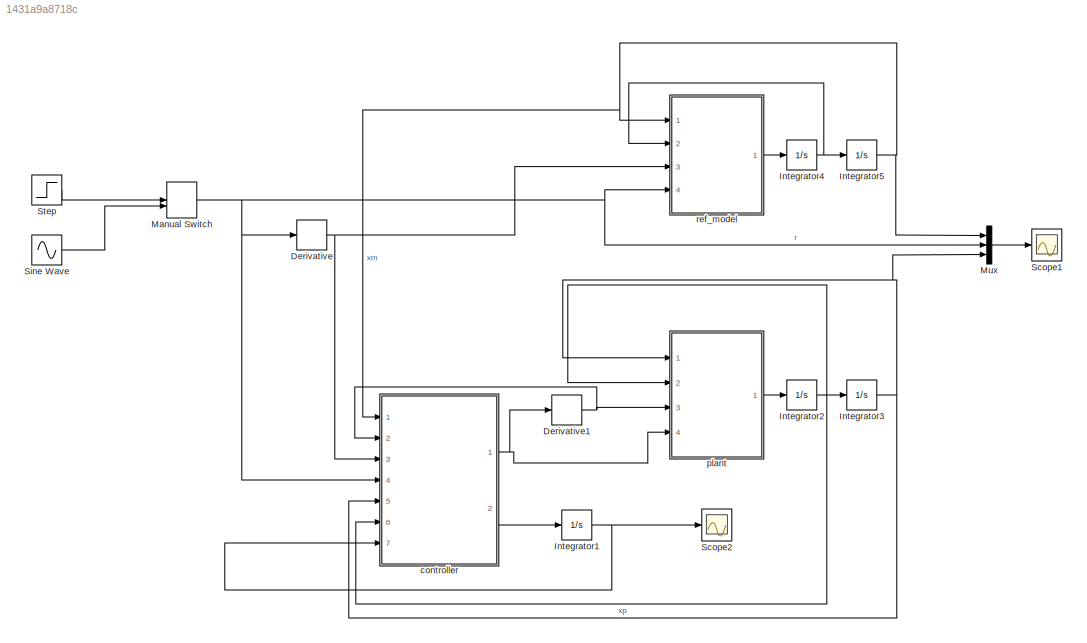
MODEL slx_1431a9a8718c
KIND model
BLOCK [Derivative] Derivative
BLOCK [Derivative] Derivative1
BLOCK [Integrator] Integrator1
  InitialCondition = theta0
  Ports = [1, 1]
BLOCK [Integrator] Integrator2
  InitialCondition = dxp0
  Ports = [1, 1]
BLOCK [Integrator] Integrator3
  InitialCondition = xp0
  Ports = [1, 1]
BLOCK [Integrator] Integrator4
  InitialCondition = dxm0
  Ports = [1, 1]
BLOCK [Integrator] Integrator5
  InitialCondition = xm0
  Ports = [1, 1]
BLOCK [ManualSwitch] Manual Switch
  CurrentSetting = 0
BLOCK [Mux] Mux
  DisplayOption = bar
  Inputs = 3
  Ports = [3, 1]
BLOCK [Scope] Scope1
  Floating = off
  LegendLocations = 0.81782     0.65574     0.11562     0.18907
  LimitDataPoints = off
  NumInputPorts = 1
  Ports = [1]
  SaveName = ScopeData1
  ShowLegends = on
  YMax = 2.5
  YMin = 0
  ZoomMode = yonly
BLOCK [Scope] Scope2
  Floating = off
  LegendLocations = 0.092593     0.22514     0.21471     0.30492
  LimitDataPoints = off
  NumInputPorts = 1
  Ports = [1]
  SaveName = ScopeData2
  ShowLegends = on
  YMax = 0.25
  YMin = -0.15
BLOCK [Sin] Sine Wave
  Amplitude = 4
  Frequency = 2*pi/10
  Ports = [0, 1]
  SampleTime = 0
BLOCK [Step] Step
  SampleTime = 0
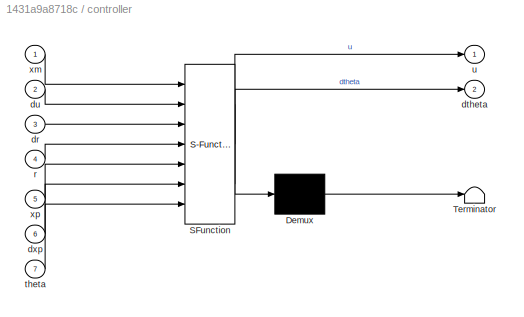
BLOCK [SubSystem] controller
  ErrorFcn = Stateflow.Translate.translate
  PermitHierarchicalResolution = ParametersOnly
  Ports = [7, 2]
  RequestExecContextInheritance = off
  SFBlockType = MATLAB Function
  TreatAsAtomicUnit = on
BLOCK [Demux] controller/ Demux 
  Outputs = 1
  Ports = [1, 1]
BLOCK [S-Function] controller/ SFunction 
  EnableBusSupport = on
  FunctionName = sf_sfun
  Parameters = gamma
  PortCounts = [7 3]
  Ports = [7, 3]
  Tag = Stateflow S-Function simu_2 2
BLOCK [Terminator] controller/ Terminator 
BLOCK [Inport] controller/dr
  IconDisplay = Port number
  Port = 3
BLOCK [Outport] controller/dtheta
  IconDisplay = Port number
  Port = 2
BLOCK [Inport] controller/du
  IconDisplay = Port number
  Port = 2
BLOCK [Inport] controller/dxp
  IconDisplay = Port number
  Port = 6
BLOCK [Inport] controller/r
  IconDisplay = Port number
  Port = 4
BLOCK [Inport] controller/theta
  IconDisplay = Port number
  Port = 7
BLOCK [Outport] controller/u
  IconDisplay = Port number
BLOCK [Inport] controller/xm
  IconDisplay = Port number
BLOCK [Inport] controller/xp
  IconDisplay = Port number
  Port = 5
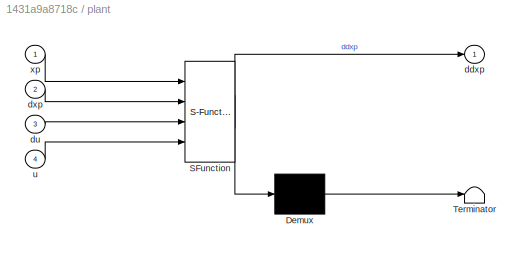
BLOCK [SubSystem] plant
  ErrorFcn = Stateflow.Translate.translate
  PermitHierarchicalResolution = ParametersOnly
  Ports = [4, 1]
  RequestExecContextInheritance = off
  SFBlockType = MATLAB Function
  TreatAsAtomicUnit = on
BLOCK [Demux] plant/ Demux 
  Outputs = 1
  Ports = [1, 1]
BLOCK [S-Function] plant/ SFunction 
  EnableBusSupport = on
  FunctionName = sf_sfun
  Parameters = ap,cp,kp
  PortCounts = [4 2]
  Ports = [4, 2]
  Tag = Stateflow S-Function simu_2 3
BLOCK [Terminator] plant/ Terminator 
BLOCK [Outport] plant/ddxp
  IconDisplay = Port number
BLOCK [Inport] plant/du
  IconDisplay = Port number
  Port = 3
BLOCK [Inport] plant/dxp
  IconDisplay = Port number
  Port = 2
BLOCK [Inport] plant/u
  IconDisplay = Port number
  Port = 4
BLOCK [Inport] plant/xp
  IconDisplay = Port number
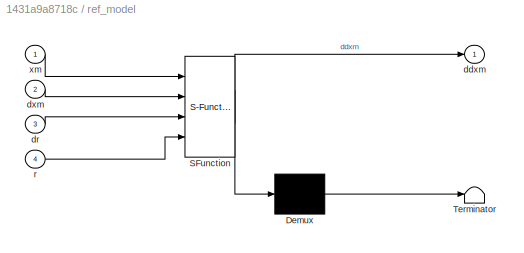
BLOCK [SubSystem] ref_model
  ErrorFcn = Stateflow.Translate.translate
  PermitHierarchicalResolution = ParametersOnly
  Ports = [4, 1]
  RequestExecContextInheritance = off
  SFBlockType = MATLAB Function
  TreatAsAtomicUnit = on
BLOCK [Demux] ref_model/ Demux 
  Outputs = 1
  Ports = [1, 1]
BLOCK [S-Function] ref_model/ SFunction 
  EnableBusSupport = on
  FunctionName = sf_sfun
  Parameters = am,cm,km
  PortCounts = [4 2]
  Ports = [4, 2]
  Tag = Stateflow S-Function simu_2 1
BLOCK [Terminator] ref_model/ Terminator 
BLOCK [Outport] ref_model/ddxm
  IconDisplay = Port number
BLOCK [Inport] ref_model/dr
  IconDisplay = Port number
  Port = 3
BLOCK [Inport] ref_model/dxm
  IconDisplay = Port number
  Port = 2
BLOCK [Inport] ref_model/r
  IconDisplay = Port number
  Port = 4
BLOCK [Inport] ref_model/xm
  IconDisplay = Port number
NET Derivative1:1 -> controller:2, plant:3
NET Derivative:1 -> controller:3, ref_model:3
NET Integrator1:1 -> Scope2:1, controller:7
NET Integrator2:1 -> Integrator3:1, controller:6, plant:2
NET Integrator3:1 -> Mux:3, controller:5, plant:1
NET Integrator4:1 -> Integrator5:1, ref_model:2
NET Integrator5:1 -> Mux:1, controller:1, ref_model:1
NET Manual Switch:1 -> Derivative:1, Mux:2, controller:4, ref_model:4
LINE Mux:1 -> Scope1:1
LINE Sine Wave:1 -> Manual Switch:2
LINE Step:1 -> Manual Switch:1
NET controller:1 -> Derivative1:1, plant:4
LINE controller:2 -> Integrator1:1
LINE plant:1 -> Integrator2:1
LINE ref_model:1 -> Integrator4:1
note: NET lines group one-source signal fan-out (src -> all destinations, sorted); 1:1 wires keep LINE
